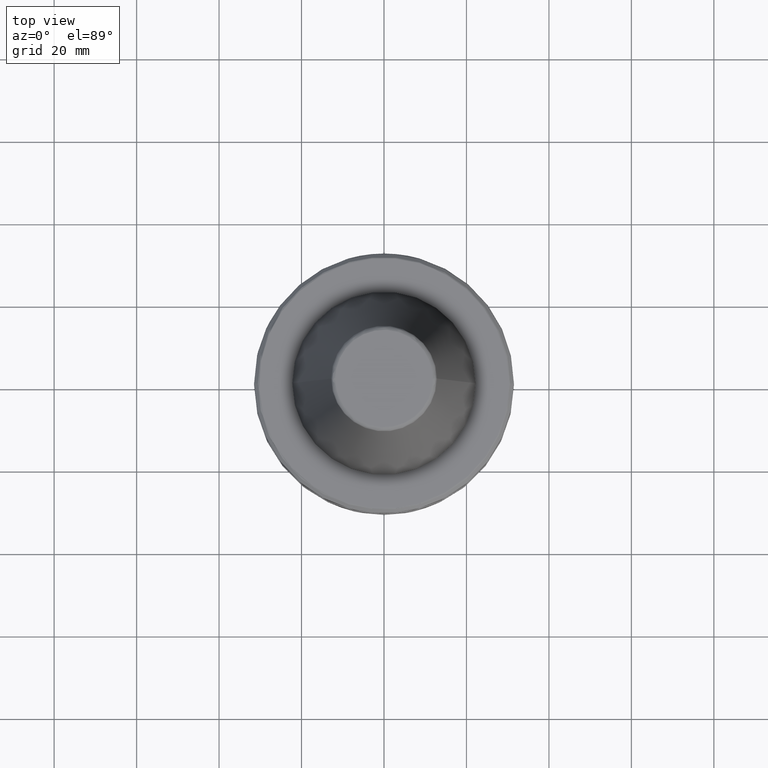
[diagram: clean part render]
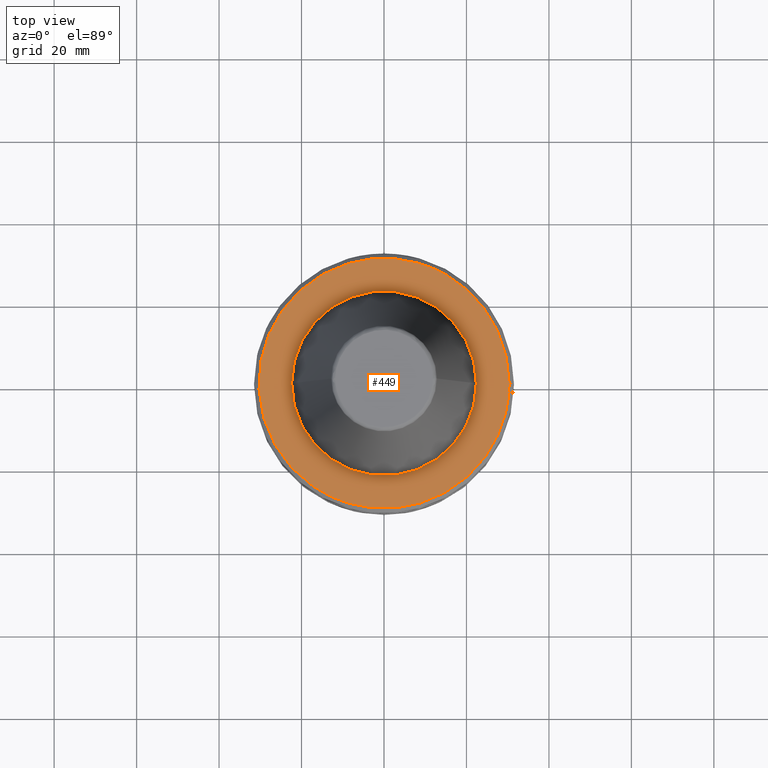
[diagram: same view with one face highlighted and labeled with its STEP entity id]
A machine part, top view. The second image highlights one B-rep face of the part: STEP entity #449.
In plain terms, the highlighted planar face has unit normal (0, 0, 1).
Its self-contained STEP definition (entity closure, byte-faithful):
#18 = CARTESIAN_POINT ( 'NONE',  ( -22.85963190511669300, 19.94021671517214900, -21.44423752521513300 ) ) ;
#20 = ORIENTED_EDGE ( 'NONE', *, *, #1716, .T. ) ;
#44 = DIRECTION ( 'NONE',  ( 6.122758756135230300E-017, -0.0000000000000000000, -1.000000000000000000 ) ) ;
#46 = CARTESIAN_POINT ( 'NONE',  ( -12.26931175439542300, 27.74229595683208800, -21.44423752521513300 ) ) ;
#47 = CARTESIAN_POINT ( 'NONE',  ( 24.85989369707722200, -17.40275913446201300, -21.44423752521513300 ) ) ;
#49 = CARTESIAN_POINT ( 'NONE',  ( -23.09558507378552900, -19.66645775180134900, -21.44423752521512900 ) ) ;
#57 = CARTESIAN_POINT ( 'NONE',  ( -15.82653136432653300, 25.87846080700313000, -21.44423752521513600 ) ) ;
#58 = CARTESIAN_POINT ( 'NONE',  ( 20.76056907758360700, -22.11742783630511200, -21.44423752521512900 ) ) ;
#61 = CARTESIAN_POINT ( 'NONE',  ( -29.30556523497550700, 7.846641085823474500, -21.44423752521512600 ) ) ;
#70 = CARTESIAN_POINT ( 'NONE',  ( 17.19472438798076700, -24.99029216120858600, -21.44423752521513300 ) ) ;
#105 = CARTESIAN_POINT ( 'NONE',  ( 28.98842710708739300, 8.936419584292126600, -21.44423752521513300 ) ) ;
#117 = CIRCLE ( 'NONE', #3389, 30.33431456900200700 ) ;
#142 = CARTESIAN_POINT ( 'NONE',  ( 26.30708420054977400, -15.11355072630101200, -21.44423752521513300 ) ) ;
#191 = DIRECTION ( 'NONE',  ( -1.000000000000000000, 0.0000000000000000000, -1.143736722338525600E-016 ) ) ;
#205 = CARTESIAN_POINT ( 'NONE',  ( -23.45444527750282400, -19.23904396912761800, -21.44423752521512900 ) ) ;
#216 = AXIS2_PLACEMENT_3D ( 'NONE', #3459, #3246, #2280 ) ;
#219 = CARTESIAN_POINT ( 'NONE',  ( -29.72993185422424700, -6.042936981963381800, -21.44423752521512900 ) ) ;
#238 = CARTESIAN_POINT ( 'NONE',  ( -29.24160871003692800, -8.069217508157454000, -21.44423752521513300 ) ) ;
#240 = CARTESIAN_POINT ( 'NONE',  ( -19.54990844443964100, 23.19423031967951600, -21.44423752521513300 ) ) ;
#248 = CARTESIAN_POINT ( 'NONE',  ( 29.95231550302439100, -4.799164966205795600, -21.44423752521512600 ) ) ;
#250 = EDGE_CURVE ( 'NONE', #763, #864, #1243, .T. ) ;
#253 = CARTESIAN_POINT ( 'NONE',  ( -28.22870576551100500, 11.10510492090675800, -21.44423752521513300 ) ) ;
#259 = CARTESIAN_POINT ( 'NONE',  ( -17.05157918383674700, -25.09305249309833400, -21.44423752521513600 ) ) ;
#261 = DIRECTION ( 'NONE',  ( -1.000000000000000000, 0.0000000000000000000, -1.143736722338525600E-016 ) ) ;
#267 = B_SPLINE_CURVE_WITH_KNOTS ( 'NONE', 3,
 ( #1010, #1705, #938, #655, #1626, #1297, #321, #2759, #46, #3475, #2265, #1563, #3247, #1641, #1200, #57, #3093, #2677, #1054, #478, #2669, #749, #844, #1123, #1923, #3025, #2773, #240, #2965, #2412, #1048, #2486, #2211, #18, #293, #772, #2690, #1582, #3277, #281, #3213, #1646, #3222, #1591, #1870, #3502, #782, #1328, #1072, #1688, #1675, #2946, #1471, #3319, #2241, #253, #1954, #607, #918, #2433, #1134, #3232, #1316, #61, #1144, #1877, #3033, #3207, #1418, #3042, #3021, #3311, #2250, #1846, #2510, #328, #2797, #1796, #3146, #438, #2895, #2616, #2938, #312, #219, #2446, #596, #501, #238, #3316, #1943, #1408, #2498, #859, #2735, #465, #2788, #602, #857, #287, #2507, #2221, #882, #303, #2954, #1323, #1306, #2138, #1664, #3303, #444, #734, #1556, #205, #1399, #49, #851, #1019, #3008, #1376, #2096, #3466, #2727, #627, #1980, #3187, #2927, #3329, #2233, #2029, #259, #3252, #807, #2385, #1700, #2150, #514, #347, #1967, #1655, #1086, #2439, #551, #2763, #871, #616, #338, #2467, #2522 ),
 .UNSPECIFIED., .F., .F.,
 ( 4, 1, 1, 1, 1, 1, 2, 2, 1, 1, 1, 1, 1, 2, 2, 1, 1, 1, 1, 1, 2, 2, 1, 1, 1, 1, 1, 2, 2, 1, 1, 1, 1, 2, 2, 1, 1, 2, 2, 1, 1, 2, 2, 1, 1, 2, 2, 1, 2, 2, 2, 2, 2, 1, 2, 2, 1, 2, 2, 1, 1, 2, 2, 1, 1, 2, 2, 1, 1, 1, 2, 2, 1, 1, 1, 2, 2, 1, 1, 1, 1, 1, 2, 2, 1, 1, 1, 1, 1, 2, 2, 1, 1, 1, 1, 1, 2, 2, 1, 1, 1, 1, 1, 2, 2, 4 ),
 ( 0.0000000000000000000, 0.03124999999999398400, 0.04687499999999097900, 0.05468749999998948100, 0.05859374999998869700, 0.06054687499998826600, 0.06152343749998809300, 0.06249999999998791900, 0.09374999999998408200, 0.1093749999999822200, 0.1171874999999812400, 0.1210937499999808200, 0.1230468749999806100, 0.1240234374999805600, 0.1249999999999804900, 0.1562499999999801300, 0.1718749999999800200, 0.1796874999999799600, 0.1835937499999798800, 0.1855468749999797700, 0.1865234374999796600, 0.1874999999999795400, 0.2187499999999784300, 0.2343749999999779100, 0.2421874999999776600, 0.2460937499999775700, 0.2480468749999776000, 0.2490234374999776000, 0.2499999999999775700, 0.2812499999999810700, 0.2968749999999827400, 0.3046874999999835700, 0.3085937499999840100, 0.3105468749999842900, 0.3124999999999845700, 0.3281249999999865700, 0.3359374999999875100, 0.3398437499999879500, 0.3437499999999884500, 0.3593749999999901200, 0.3671874999999909500, 0.3710937499999914000, 0.3749999999999918400, 0.3906249999999937300, 0.3984374999999946700, 0.4023437499999951700, 0.4062499999999956100, 0.4218749999999975000, 0.4296874999999984500, 0.4374999999999993900, 0.4531250000000012800, 0.4687500000000031100, 0.5000000000000068800, 0.5156250000000087700, 0.5234375000000096600, 0.5312500000000106600, 0.5468750000000125500, 0.5546875000000134300, 0.5625000000000144300, 0.5781250000000164300, 0.5859375000000173200, 0.5898437500000177600, 0.5937500000000182100, 0.6093750000000203200, 0.6171875000000214300, 0.6210937500000218700, 0.6250000000000223200, 0.6406250000000239800, 0.6484375000000248700, 0.6523437500000252000, 0.6542968750000253100, 0.6562500000000255400, 0.6718750000000269800, 0.6796875000000276400, 0.6835937500000280900, 0.6855468750000282000, 0.6875000000000284200, 0.7187500000000303100, 0.7343750000000312000, 0.7421875000000316400, 0.7460937500000318600, 0.7480468750000319700, 0.7490234375000319700, 0.7500000000000319700, 0.7812500000000299800, 0.7968750000000289800, 0.8046875000000285300, 0.8085937500000282000, 0.8105468750000280900, 0.8115234375000278700, 0.8125000000000276400, 0.8437500000000242000, 0.8593750000000224300, 0.8671875000000214300, 0.8710937500000210900, 0.8730468750000207600, 0.8740234375000205400, 0.8750000000000204300, 0.9062500000000153200, 0.9218750000000127700, 0.9296875000000115500, 0.9335937500000108800, 0.9355468750000106600, 0.9365234375000104400, 0.9375000000000102100, 1.000000000000000000 ),
 .UNSPECIFIED. ) ;
#269 = FACE_BOUND ( 'NONE', #1056, .T. ) ;
#271 = CARTESIAN_POINT ( 'NONE',  ( 28.63096951996833200, 10.05576094680307800, -21.44423752521513300 ) ) ;
#272 = VERTEX_POINT ( 'NONE', #3368 ) ;
#281 = CARTESIAN_POINT ( 'NONE',  ( -25.16654743510042600, 16.94516325671633100, -21.44423752521512900 ) ) ;
#287 = CARTESIAN_POINT ( 'NONE',  ( -27.40149213974587600, -13.01349206527160600, -21.44423752521513300 ) ) ;
#293 = CARTESIAN_POINT ( 'NONE',  ( -22.90887552212405600, 19.88352701772038200, -21.44423752521513300 ) ) ;
#303 = CARTESIAN_POINT ( 'NONE',  ( -27.03553885906390200, -13.76390742996183600, -21.44423752521514000 ) ) ;
#312 = CARTESIAN_POINT ( 'NONE',  ( -29.85796792915278200, -5.359648912770656400, -21.44423752521512600 ) ) ;
#321 = CARTESIAN_POINT ( 'NONE',  ( -12.17877127723184400, 27.78220357693111700, -21.44423752521513600 ) ) ;
#322 = CARTESIAN_POINT ( 'NONE',  ( 14.86329725062593400, -26.46491810425159800, -21.44423752521513300 ) ) ;
#328 = CARTESIAN_POINT ( 'NONE',  ( -30.31800518701056600, -1.173009827675317100, -21.44423752521513300 ) ) ;
#338 = CARTESIAN_POINT ( 'NONE',  ( -11.14803108254964000, -28.23998999071186200, -21.44423752521513300 ) ) ;
#347 = CARTESIAN_POINT ( 'NONE',  ( -15.36878485440662900, -26.16193571590465800, -21.44423752521514000 ) ) ;
#349 = CARTESIAN_POINT ( 'NONE',  ( 8.750000001478788600, 29.04493313135358400, -21.44423752520788200 ) ) ;
#376 = CARTESIAN_POINT ( 'NONE',  ( 19.54166597335442600, 23.22700986481959300, -21.44423752521512900 ) ) ;
#386 = CARTESIAN_POINT ( 'NONE',  ( 21.13382203617698400, 21.76103739964289100, -21.44423752521512900 ) ) ;
#396 = CARTESIAN_POINT ( 'NONE',  ( -8.749999995869760700, 29.04493313379887500, -21.44423752520788200 ) ) ;
#412 = CARTESIAN_POINT ( 'NONE',  ( 20.91054753844557700, -21.97567508848609200, -21.44423752521513300 ) ) ;
#438 = CARTESIAN_POINT ( 'NONE',  ( -30.16040121440200400, -3.277170787968350000, -21.44423752521512900 ) ) ;
#444 = CARTESIAN_POINT ( 'NONE',  ( -25.52221399129786400, -16.41682807450866800, -21.44423752521513600 ) ) ;
#449 = ADVANCED_FACE ( 'NONE', ( #986, #269 ), #889, .T. ) ;
#465 = CARTESIAN_POINT ( 'NONE',  ( -28.35057164199199800, -10.79019309049798500, -21.44423752521513600 ) ) ;
#478 = CARTESIAN_POINT ( 'NONE',  ( -16.58941387358659700, 25.40707027270746500, -21.44423752521513300 ) ) ;
#487 = CARTESIAN_POINT ( 'NONE',  ( 18.90411900672180700, -23.74878839316824000, -21.44423752521512600 ) ) ;
#501 = CARTESIAN_POINT ( 'NONE',  ( -29.30241173548877500, -7.845556328232476100, -21.44423752521513600 ) ) ;
#502 = CARTESIAN_POINT ( 'NONE',  ( 26.65983322002964300, -14.47418957295730900, -21.44423752521513300 ) ) ;
#514 = CARTESIAN_POINT ( 'NONE',  ( -15.97329696644321800, -25.78807603657751100, -21.44423752521513300 ) ) ;
#525 = CARTESIAN_POINT ( 'NONE',  ( 27.04742688784089600, 13.73383212788996000, -21.44423752521513300 ) ) ;
#540 = CARTESIAN_POINT ( 'NONE',  ( 30.01202196808252200, 4.410385860621262900, -21.44423752521512900 ) ) ;
#551 = CARTESIAN_POINT ( 'NONE',  ( -12.44322710590108200, -27.66477778677129600, -21.44423752521513300 ) ) ;
#556 = CARTESIAN_POINT ( 'NONE',  ( 27.63035417192132900, 12.53142947791739000, -21.44423752521513300 ) ) ;
#557 = EDGE_CURVE ( 'NONE', #1851, #272, #2802, .T. ) ;
#596 = CARTESIAN_POINT ( 'NONE',  ( -29.39167438075841300, -7.509625110865800800, -21.44423752521513300 ) ) ;
#602 = CARTESIAN_POINT ( 'NONE',  ( -27.89226686244611400, -11.93932451988366600, -21.44423752521513300 ) ) ;
#603 = CARTESIAN_POINT ( 'NONE',  ( 13.79814797504549700, -27.02646656267283700, -21.44423752521513600 ) ) ;
#607 = CARTESIAN_POINT ( 'NONE',  ( -28.47452982409519600, 10.46812696465313800, -21.44423752521512600 ) ) ;
#616 = CARTESIAN_POINT ( 'NONE',  ( -12.32358534066792200, -27.71822966472389300, -21.44423752521513300 ) ) ;
#627 = CARTESIAN_POINT ( 'NONE',  ( -19.83564152659195700, -22.95072491973525400, -21.44423752521513300 ) ) ;
#641 = EDGE_CURVE ( 'NONE', #3501, #272, #1423, .T. ) ;
#648 = CARTESIAN_POINT ( 'NONE',  ( 17.82733198809326300, 24.54451400706288700, -21.44423752521514000 ) ) ;
#655 = CARTESIAN_POINT ( 'NONE',  ( -11.28643410339207700, 28.15961445782267300, -21.44423752521513600 ) ) ;
#662 = CARTESIAN_POINT ( 'NONE',  ( 29.99785526008798400, 4.505728233860958600, -21.44423752521513300 ) ) ;
#663 = CARTESIAN_POINT ( 'NONE',  ( 28.41477420483278800, -10.63361780963425600, -21.44423752521513600 ) ) ;
#688 = CARTESIAN_POINT ( 'NONE',  ( 29.09063575868577400, 8.601010503176203400, -21.44423752521513300 ) ) ;
#700 = CARTESIAN_POINT ( 'NONE',  ( 22.26372282852959100, -20.67119464497361700, -21.44423752521512900 ) ) ;
#710 = CARTESIAN_POINT ( 'NONE',  ( 29.86171522720278700, 5.393757614625077900, -21.44423752521513600 ) ) ;
#734 = CARTESIAN_POINT ( 'NONE',  ( -24.81865136491735800, -17.47798243998386200, -21.44423752521513300 ) ) ;
#749 = CARTESIAN_POINT ( 'NONE',  ( -18.55705501470736300, 24.00111131073269300, -21.44423752521512900 ) ) ;
#763 = VERTEX_POINT ( 'NONE', #2559 ) ;
#772 = CARTESIAN_POINT ( 'NONE',  ( -22.94166126692964600, 19.84568985575193900, -21.44423752521512900 ) ) ;
#782 = CARTESIAN_POINT ( 'NONE',  ( -26.51982622993560300, 14.73806452994922700, -21.44423752521513300 ) ) ;
#794 = CARTESIAN_POINT ( 'NONE',  ( 0.0000000000000000000, 0.0000000000000000000, -21.44423752510434500 ) ) ;
#795 = CARTESIAN_POINT ( 'NONE',  ( 13.16285478294789300, 27.32969761418344500, -21.44423752521514400 ) ) ;
#807 = CARTESIAN_POINT ( 'NONE',  ( -16.23178498455597900, -25.62645439202899700, -21.44423752521513300 ) ) ;
#810 = CARTESIAN_POINT ( 'NONE',  ( 27.18528209523584500, 13.45890902761307100, -21.44423752521512900 ) ) ;
#831 = DIRECTION ( 'NONE',  ( 0.0000000000000000000, -0.0000000000000000000, -1.000000000000000000 ) ) ;
#844 = CARTESIAN_POINT ( 'NONE',  ( -19.06655336706329300, 23.59447132602341000, -21.44423752521513300 ) ) ;
#851 = CARTESIAN_POINT ( 'NONE',  ( -23.04372570766855700, -19.72708847695814100, -21.44423752521513600 ) ) ;
#857 = CARTESIAN_POINT ( 'NONE',  ( -27.56911341682788200, -12.65715468422670200, -21.44423752521513300 ) ) ;
#858 = CARTESIAN_POINT ( 'NONE',  ( 10.58809472696476900, -28.44498156557607500, -21.44423752521513300 ) ) ;
#859 = CARTESIAN_POINT ( 'NONE',  ( -28.47156557247467000, -10.46679024261103000, -21.44423752521513300 ) ) ;
#864 = VERTEX_POINT ( 'NONE', #3057 ) ;
#871 = CARTESIAN_POINT ( 'NONE',  ( -12.34488282749366300, -27.70875195747039800, -21.44423752521513300 ) ) ;
#877 = CARTESIAN_POINT ( 'NONE',  ( 30.33431456900201400, 0.0000000000000000000, -21.44423752520426200 ) ) ;
#882 = CARTESIAN_POINT ( 'NONE',  ( -27.25412894740920000, -13.31863642251586200, -21.44423752521513300 ) ) ;
#889 = PLANE ( 'NONE',  #216 ) ;
#918 = CARTESIAN_POINT ( 'NONE',  ( -28.70639203152474300, 9.822481284217595000, -21.44423752521513300 ) ) ;
#938 = CARTESIAN_POINT ( 'NONE',  ( -10.25539830330051700, 28.56047632671817000, -21.44423752521514000 ) ) ;
#957 = CARTESIAN_POINT ( 'NONE',  ( 30.29044347923333500, 1.924758843768473300, -21.44423752521514000 ) ) ;
#960 = CARTESIAN_POINT ( 'NONE',  ( 0.0000000000000000000, 0.0000000000000000000, -21.44423752510434500 ) ) ;
#986 = FACE_OUTER_BOUND ( 'NONE', #2016, .T. ) ;
#1010 = CARTESIAN_POINT ( 'NONE',  ( -8.749999995869760700, 29.04493313379887500, -21.44423752520788200 ) ) ;
#1019 = CARTESIAN_POINT ( 'NONE',  ( -23.00909626142592800, -19.76746816166707200, -21.44423752521514000 ) ) ;
#1048 = CARTESIAN_POINT ( 'NONE',  ( -22.03939454325586700, 20.84996729250037000, -21.44423752521512600 ) ) ;
#1054 = CARTESIAN_POINT ( 'NONE',  ( -15.93515230959384800, 25.81166558167742400, -21.44423752521512900 ) ) ;
#1056 = EDGE_LOOP ( 'NONE', ( #3354, #2327 ) ) ;
#1069 = CARTESIAN_POINT ( 'NONE',  ( 13.38901561962753700, 27.21989881168877900, -21.44423752521513300 ) ) ;
#1072 = CARTESIAN_POINT ( 'NONE',  ( -27.03275052789015100, 13.76274605929859100, -21.44423752521513300 ) ) ;
#1086 = CARTESIAN_POINT ( 'NONE',  ( -12.85459972846838500, -27.47694574358417400, -21.44423752521513300 ) ) ;
#1097 = CARTESIAN_POINT ( 'NONE',  ( 28.85121774064391800, -9.369123570044861200, -21.44423752521514000 ) ) ;
#1118 = AXIS2_PLACEMENT_3D ( 'NONE', #3296, #44, #261 ) ;
#1120 = CARTESIAN_POINT ( 'NONE',  ( 27.37547041561037300, -13.09329530644553300, -21.44423752521512600 ) ) ;
#1123 = CARTESIAN_POINT ( 'NONE',  ( -19.31866988910829300, 23.38749669932567300, -21.44423752521513300 ) ) ;
#1127 = CARTESIAN_POINT ( 'NONE',  ( 14.32913341033815000, 26.74200232874733300, -21.44423752521513300 ) ) ;
#1130 = CARTESIAN_POINT ( 'NONE',  ( 17.07129888495623100, -25.07476727268116100, -21.44423752521513600 ) ) ;
#1134 = CARTESIAN_POINT ( 'NONE',  ( -29.05060347296399200, 8.731905628200598500, -21.44423752521512900 ) ) ;
#1144 = CARTESIAN_POINT ( 'NONE',  ( -29.48014449817852900, 7.174164014975952200, -21.44423752521513300 ) ) ;
#1172 = CARTESIAN_POINT ( 'NONE',  ( 16.57516464988139800, 25.41815741955384000, -21.44423752521512900 ) ) ;
#1181 = CARTESIAN_POINT ( 'NONE',  ( 13.11580958611024700, 27.35230287926853200, -21.44423752521513300 ) ) ;
#1182 = AXIS2_PLACEMENT_3D ( 'NONE', #960, #3417, #3280 ) ;
#1200 = CARTESIAN_POINT ( 'NONE',  ( -15.69778709484234400, 25.95694837428455400, -21.44423752521513600 ) ) ;
#1211 = CARTESIAN_POINT ( 'NONE',  ( 30.33431457495837000, 0.7712161271116305700, -21.44423752521512900 ) ) ;
#1230 = CARTESIAN_POINT ( 'NONE',  ( 29.96801143810511200, -4.700148099795349300, -21.44423752521512900 ) ) ;
#1243 = CIRCLE ( 'NONE', #1182, 22.40000002040103800 ) ;
#1270 = DIRECTION ( 'NONE',  ( 1.000000000000000000, 0.0000000000000000000, 0.0000000000000000000 ) ) ;
#1297 = CARTESIAN_POINT ( 'NONE',  ( -12.05185563246847000, 27.83764265966463100, -21.44423752521514000 ) ) ;
#1306 = CARTESIAN_POINT ( 'NONE',  ( -26.16013753808110200, -15.35705237858486800, -21.44423752521512900 ) ) ;
#1316 = CARTESIAN_POINT ( 'NONE',  ( -29.14718843085234200, 8.403888779298167600, -21.44423752521513300 ) ) ;
#1323 = CARTESIAN_POINT ( 'NONE',  ( -26.35425704788690000, -15.02361902330649600, -21.44423752521513300 ) ) ;
#1328 = CARTESIAN_POINT ( 'NONE',  ( -26.88217831965426900, 14.05718565636906300, -21.44423752521513300 ) ) ;
#1337 = VERTEX_POINT ( 'NONE', #2484 ) ;
#1369 = CARTESIAN_POINT ( 'NONE',  ( 25.35861405880739400, 16.73046950028232900, -21.44423752521513600 ) ) ;
#1372 = CARTESIAN_POINT ( 'NONE',  ( 26.95283833222943300, -13.91853609181248400, -21.44423752521513600 ) ) ;
#1373 = EDGE_CURVE ( 'NONE', #3176, #1337, #117, .T. ) ;
#1376 = CARTESIAN_POINT ( 'NONE',  ( -22.45144898412380700, -20.41434030231242900, -21.44423752521513300 ) ) ;
#1394 = CARTESIAN_POINT ( 'NONE',  ( 27.89260539019199200, -11.97365973299851700, -21.44423752521513300 ) ) ;
#1399 = CARTESIAN_POINT ( 'NONE',  ( -23.21599663866301100, -19.52455767311509400, -21.44423752521513300 ) ) ;
#1401 = CARTESIAN_POINT ( 'NONE',  ( 17.40672245480474700, 24.84309496395731600, -21.44423752521512900 ) ) ;
#1405 = CARTESIAN_POINT ( 'NONE',  ( 12.89714598837440300, -27.45608517624842200, -21.44423752521512900 ) ) ;
#1408 = CARTESIAN_POINT ( 'NONE',  ( -28.85137362389317400, -9.388095370954451000, -21.44423752521513300 ) ) ;
#1418 = CARTESIAN_POINT ( 'NONE',  ( -29.90139651576428300, 5.127975516588963800, -21.44423752521512900 ) ) ;
#1423 = B_SPLINE_CURVE_WITH_KNOTS ( 'NONE', 3,
 ( #877, #1211, #957, #1683, #2370, #2177, #540, #662, #2004, #710, #2297, #2538, #688, #105, #3361, #1733, #1907, #271, #2189, #556, #2460, #810, #2167, #525, #2435, #1369, #3269, #1637, #1561, #3138, #1780, #2983, #386, #3469, #376, #1466, #648, #3304, #1401, #1442, #3061, #1172, #3028, #1127, #2778, #1069, #2719, #795, #1181, #1451, #2057, #349 ),
 .UNSPECIFIED., .F., .F.,
 ( 4, 1, 1, 1, 1, 2, 2, 1, 1, 1, 1, 2, 2, 1, 1, 1, 2, 2, 2, 1, 1, 1, 2, 2, 1, 1, 1, 1, 2, 2, 1, 1, 1, 1, 2, 2, 4 ),
 ( 0.0000000000000000000, 0.06249999999999542000, 0.09374999999999313000, 0.1093749999999919800, 0.1171874999999914200, 0.1210937499999911900, 0.1249999999999909500, 0.1874999999999872300, 0.2187499999999853500, 0.2343749999999844800, 0.2421874999999840700, 0.2460937499999839300, 0.2499999999999838500, 0.3124999999999825700, 0.3437499999999820100, 0.3593749999999817900, 0.3671874999999815700, 0.3749999999999814000, 0.4999999999999802400, 0.5624999999999796800, 0.5937499999999793500, 0.6093749999999791300, 0.6171874999999790200, 0.6249999999999787900, 0.6874999999999775700, 0.7187499999999771300, 0.7343749999999769100, 0.7421874999999770200, 0.7460937499999772400, 0.7499999999999773500, 0.8124999999999833500, 0.8437499999999862300, 0.8593749999999876800, 0.8671874999999884500, 0.8710937499999889000, 0.8749999999999893400, 1.000000000000000000 ),
 .UNSPECIFIED. ) ;
#1442 = CARTESIAN_POINT ( 'NONE',  ( 17.32208312798371700, 24.90218239604509900, -21.44423752521513600 ) ) ;
#1451 = CARTESIAN_POINT ( 'NONE',  ( 11.67427520324747900, 28.04074170516553700, -21.44423752521512900 ) ) ;
#1466 = CARTESIAN_POINT ( 'NONE',  ( 18.40812359473299900, 24.11670419200401800, -21.44423752521513300 ) ) ;
#1471 = CARTESIAN_POINT ( 'NONE',  ( -27.71196662875021800, 12.35204075583509600, -21.44423752521512600 ) ) ;
#1489 = CARTESIAN_POINT ( 'NONE',  ( 29.92841003638866600, -4.947604003023527300, -21.44423752521513300 ) ) ;
#1537 = DIRECTION ( 'NONE',  ( 6.122758756135230300E-017, -0.0000000000000000000, -1.000000000000000000 ) ) ;
#1556 = CARTESIAN_POINT ( 'NONE',  ( -23.92184459152181800, -18.66116237469282900, -21.44423752521513600 ) ) ;
#1561 = CARTESIAN_POINT ( 'NONE',  ( 22.09088076522871400, 20.79604614924344100, -21.44423752521514000 ) ) ;
#1563 = CARTESIAN_POINT ( 'NONE',  ( -13.86415961926879700, 26.99612151121091200, -21.44423752521512900 ) ) ;
#1582 = CARTESIAN_POINT ( 'NONE',  ( -23.53005888117358100, 19.16329848511978200, -21.44423752521513300 ) ) ;
#1591 = CARTESIAN_POINT ( 'NONE',  ( -25.90715952071815300, 15.77949653812124900, -21.44423752521513300 ) ) ;
#1626 = CARTESIAN_POINT ( 'NONE',  ( -11.79746324858512100, 27.94699758252555800, -21.44423752521513600 ) ) ;
#1637 = CARTESIAN_POINT ( 'NONE',  ( 23.07676778877071700, 19.71966275226225600, -21.44423752521513300 ) ) ;
#1641 = CARTESIAN_POINT ( 'NONE',  ( -15.43940690722267700, 26.11221914298980100, -21.44423752521513300 ) ) ;
#1642 = CARTESIAN_POINT ( 'NONE',  ( 28.86751918071630400, -9.318767940978128600, -21.44423752521513600 ) ) ;
#1646 = CARTESIAN_POINT ( 'NONE',  ( -25.76810133034875600, 16.00611813852728800, -21.44423752521513300 ) ) ;
#1655 = CARTESIAN_POINT ( 'NONE',  ( -13.39887550370883900, -27.21858097113412000, -21.44423752521513300 ) ) ;
#1663 = CARTESIAN_POINT ( 'NONE',  ( 25.56323180087678500, -16.36831578779603900, -21.44423752521512900 ) ) ;
#1664 = CARTESIAN_POINT ( 'NONE',  ( -26.01922917974168900, -15.59401518636706500, -21.44423752521513300 ) ) ;
#1671 = CARTESIAN_POINT ( 'NONE',  ( 11.83941287480811200, -27.93322777065648000, -21.44423752521513300 ) ) ;
#1675 = CARTESIAN_POINT ( 'NONE',  ( -27.18025756465646500, 13.46910465775404800, -21.44423752521512900 ) ) ;
#1683 = CARTESIAN_POINT ( 'NONE',  ( 30.16248611670198100, 3.264816100349556400, -21.44423752521512900 ) ) ;
#1686 = CARTESIAN_POINT ( 'NONE',  ( 17.15433945216385700, -25.01802854571976900, -21.44423752521512600 ) ) ;
#1688 = CARTESIAN_POINT ( 'NONE',  ( -27.13208276793615800, 13.56586758002134900, -21.44423752521512900 ) ) ;
#1700 = CARTESIAN_POINT ( 'NONE',  ( -16.03423993749606800, -25.75022878978812100, -21.44423752521513600 ) ) ;
#1705 = CARTESIAN_POINT ( 'NONE',  ( -9.356263315155539200, 28.86229184571645900, -21.44423752521513600 ) ) ;
#1716 = EDGE_CURVE ( 'NONE', #1851, #1337, #267, .T. ) ;
#1733 = CARTESIAN_POINT ( 'NONE',  ( 28.91336940120705300, 9.175520046391985900, -21.44423752521512200 ) ) ;
#1746 = CARTESIAN_POINT ( 'NONE',  ( 30.33431457497162100, -1.542779007675801900, -21.44423752521513600 ) ) ;
#1768 = CARTESIAN_POINT ( 'NONE',  ( 23.36555037927637100, -19.41688641021136200, -21.44423752521512900 ) ) ;
#1780 = CARTESIAN_POINT ( 'NONE',  ( 21.35866752157886600, 21.54041520531617600, -21.44423752521513300 ) ) ;
#1796 = CARTESIAN_POINT ( 'NONE',  ( -30.24453846332192700, -2.343846697131948300, -21.44423752521513300 ) ) ;
#1846 = CARTESIAN_POINT ( 'NONE',  ( -30.33429755141496600, 0.9389045383045359100, -21.44423752521512200 ) ) ;
#1851 = VERTEX_POINT ( 'NONE', #396 ) ;
#1870 = CARTESIAN_POINT ( 'NONE',  ( -25.93380419485157900, 15.73567355049435800, -21.44423752521512900 ) ) ;
#1877 = CARTESIAN_POINT ( 'NONE',  ( -29.63151440876439200, 6.496017186111593800, -21.44423752521512900 ) ) ;
#1907 = CARTESIAN_POINT ( 'NONE',  ( 28.89858134316644800, 9.221997355100700800, -21.44423752521513300 ) ) ;
#1923 = CARTESIAN_POINT ( 'NONE',  ( -19.44406998659755500, 23.28309572739105000, -21.44423752521513300 ) ) ;
#1943 = CARTESIAN_POINT ( 'NONE',  ( -29.05377656789162400, -8.732617317255108700, -21.44423752521513600 ) ) ;
#1954 = CARTESIAN_POINT ( 'NONE',  ( -28.26907202197830000, 11.00196227169500300, -21.44423752521513300 ) ) ;
#1963 = CARTESIAN_POINT ( 'NONE',  ( 16.65416802668826100, -25.35511054134805800, -21.44423752521513600 ) ) ;
#1967 = CARTESIAN_POINT ( 'NONE',  ( -14.47295486613505500, -26.67469011811782000, -21.44423752521513300 ) ) ;
#1977 = CARTESIAN_POINT ( 'NONE',  ( 29.87009966613603900, -5.293357916012627800, -21.44423752521513600 ) ) ;
#1980 = CARTESIAN_POINT ( 'NONE',  ( -19.70264147409598400, -23.06471178871487700, -21.44423752521513600 ) ) ;
#2004 = CARTESIAN_POINT ( 'NONE',  ( 29.99094772053029000, 4.551500430332438900, -21.44423752521513300 ) ) ;
#2016 = EDGE_LOOP ( 'NONE', ( #20, #3103, #3370, #3085, #2569 ) ) ;
#2029 = CARTESIAN_POINT ( 'NONE',  ( -18.11984527912974100, -24.34790061053422900, -21.44423752521513300 ) ) ;
#2057 = CARTESIAN_POINT ( 'NONE',  ( 10.23356629335728300, 28.59799786287141600, -21.44423752521512900 ) ) ;
#2096 = CARTESIAN_POINT ( 'NONE',  ( -21.63358037532213300, -21.29054291801603700, -21.44423752521513600 ) ) ;
#2138 = CARTESIAN_POINT ( 'NONE',  ( -26.07575145712129200, -15.49931504263486200, -21.44423752521513300 ) ) ;
#2139 = CARTESIAN_POINT ( 'NONE',  ( 26.80690197544460300, -14.19761080239655200, -21.44423752521513300 ) ) ;
#2150 = CARTESIAN_POINT ( 'NONE',  ( -15.99463289518236100, -25.77484943083607000, -21.44423752521512600 ) ) ;
#2160 = CARTESIAN_POINT ( 'NONE',  ( 29.44937089774747800, -7.350973885550533100, -21.44423752521513300 ) ) ;
#2167 = CARTESIAN_POINT ( 'NONE',  ( 27.09326598936603500, 13.64317372372470200, -21.44423752521513300 ) ) ;
#2177 = CARTESIAN_POINT ( 'NONE',  ( 30.03292928713898400, 4.267346664246010900, -21.44423752521512900 ) ) ;
#2189 = CARTESIAN_POINT ( 'NONE',  ( 28.20668680420683900, 11.21377500257944100, -21.44423752521513300 ) ) ;
#2211 = CARTESIAN_POINT ( 'NONE',  ( -22.74427513350693900, 20.07203035738674400, -21.44423752521513600 ) ) ;
#2221 = CARTESIAN_POINT ( 'NONE',  ( -27.27931605081495200, -13.26697541080003400, -21.44423752521514000 ) ) ;
#2233 = CARTESIAN_POINT ( 'NONE',  ( -18.99907164101645000, -23.65931423675946400, -21.44423752521513600 ) ) ;
#2239 = CARTESIAN_POINT ( 'NONE',  ( 16.94655145134835500, -25.15955113414192500, -21.44423752521513300 ) ) ;
#2241 = CARTESIAN_POINT ( 'NONE',  ( -28.14553413828869900, 11.31424795221306700, -21.44423752521513300 ) ) ;
#2246 = CARTESIAN_POINT ( 'NONE',  ( 20.98426913038819200, -21.90529410334922700, -21.44423752521512900 ) ) ;
#2250 = CARTESIAN_POINT ( 'NONE',  ( -30.29076611538207700, 1.876886031417243100, -21.44423752521512600 ) ) ;
#2262 = EDGE_CURVE ( 'NONE', #3176, #3501, #2923, .T. ) ;
#2265 = CARTESIAN_POINT ( 'NONE',  ( -12.93548555502557000, 27.44666887132523700, -21.44423752521513600 ) ) ;
#2280 = DIRECTION ( 'NONE',  ( 1.000000000000000000, 0.0000000000000000000, 0.0000000000000000000 ) ) ;
#2283 = CIRCLE ( 'NONE', #2586, 22.40000002040103800 ) ;
#2297 = CARTESIAN_POINT ( 'NONE',  ( 29.63292899849324500, 6.572041760364520300, -21.44423752521513300 ) ) ;
#2300 = CARTESIAN_POINT ( 'NONE',  ( 28.65556978156043800, -9.955146742699772800, -21.44423752521513600 ) ) ;
#2318 = CARTESIAN_POINT ( 'NONE',  ( 20.53460649961489500, -22.32883463492899500, -21.44423752521512900 ) ) ;
#2327 = ORIENTED_EDGE ( 'NONE', *, *, #2755, .T. ) ;
#2370 = CARTESIAN_POINT ( 'NONE',  ( 30.07931383105659200, 3.933409083760461800, -21.44423752521513300 ) ) ;
#2385 = CARTESIAN_POINT ( 'NONE',  ( -16.09360306569160300, -25.71323287410141800, -21.44423752521513300 ) ) ;
#2395 = CARTESIAN_POINT ( 'NONE',  ( 12.45809533749644200, -27.65923488050163900, -21.44423752521514000 ) ) ;
#2412 = CARTESIAN_POINT ( 'NONE',  ( -21.06558052800771800, 21.85269675752158800, -21.44423752521513600 ) ) ;
#2430 = CARTESIAN_POINT ( 'NONE',  ( 9.491616504584740700, -28.82151570055269100, -21.44423752521512900 ) ) ;
#2433 = CARTESIAN_POINT ( 'NONE',  ( -28.95119541874877800, 9.060402194401838500, -21.44423752521513300 ) ) ;
#2435 = CARTESIAN_POINT ( 'NONE',  ( 26.23772648863186100, 15.31501136433278500, -21.44423752521512900 ) ) ;
#2439 = CARTESIAN_POINT ( 'NONE',  ( -12.58065281734131000, -27.60273296629468100, -21.44423752521512900 ) ) ;
#2446 = CARTESIAN_POINT ( 'NONE',  ( -29.58636063603085400, -6.722709471322451300, -21.44423752521513300 ) ) ;
#2460 = CARTESIAN_POINT ( 'NONE',  ( 27.32185382313764100, 13.18191623481939700, -21.44423752521513300 ) ) ;
#2467 = CARTESIAN_POINT ( 'NONE',  ( -9.962864446478954900, -28.67954878815529100, -21.44423752521513600 ) ) ;
#2484 = CARTESIAN_POINT ( 'NONE',  ( -8.749999995869762500, -29.04493313379886700, -21.44423752520788200 ) ) ;
#2486 = CARTESIAN_POINT ( 'NONE',  ( -22.51174159591706600, 20.33380836779108200, -21.44423752521513600 ) ) ;
#2498 = CARTESIAN_POINT ( 'NONE',  ( -28.58938566633432300, -10.14443890969965200, -21.44423752521513300 ) ) ;
#2507 = CARTESIAN_POINT ( 'NONE',  ( -27.32835918793796300, -13.16565572119227800, -21.44423752521513300 ) ) ;
#2508 = CARTESIAN_POINT ( 'NONE',  ( 13.02675039796568700, -27.39483329308407600, -21.44423752521513300 ) ) ;
#2510 = CARTESIAN_POINT ( 'NONE',  ( -30.33432308671673300, -0.4694522691522602900, -21.44423752521513600 ) ) ;
#2518 = CARTESIAN_POINT ( 'NONE',  ( 16.06417685906781400, -25.73715094428412800, -21.44423752521513300 ) ) ;
#2522 = CARTESIAN_POINT ( 'NONE',  ( -8.749999995869762500, -29.04493313379886700, -21.44423752520788200 ) ) ;
#2538 = CARTESIAN_POINT ( 'NONE',  ( 29.28491610905643600, 7.927833161499199500, -21.44423752521513300 ) ) ;
#2559 = CARTESIAN_POINT ( 'NONE',  ( 22.40000001036365500, 0.0000000000000000000, -21.44423752510434500 ) ) ;
#2564 = CARTESIAN_POINT ( 'NONE',  ( 8.750000001479552500, -29.04493313135611400, -21.44423752520788200 ) ) ;
#2569 = ORIENTED_EDGE ( 'NONE', *, *, #557, .F. ) ;
#2586 = AXIS2_PLACEMENT_3D ( 'NONE', #794, #831, #1270 ) ;
#2616 = CARTESIAN_POINT ( 'NONE',  ( -29.97421796202241900, -4.666058091268344500, -21.44423752521513300 ) ) ;
#2669 = CARTESIAN_POINT ( 'NONE',  ( -17.51699707693187200, 24.78515420540653800, -21.44423752521513300 ) ) ;
#2677 = CARTESIAN_POINT ( 'NONE',  ( -15.91831110411200500, 25.82205332775956200, -21.44423752521513600 ) ) ;
#2690 = CARTESIAN_POINT ( 'NONE',  ( -22.95701710977266800, 19.82792690338144900, -21.44423752521513300 ) ) ;
#2697 = CARTESIAN_POINT ( 'NONE',  ( 30.33431456900201400, 0.0000000000000000000, -21.44423752520426200 ) ) ;
#2719 = CARTESIAN_POINT ( 'NONE',  ( 13.25339446683475600, 27.28590737127410300, -21.44423752521513300 ) ) ;
#2727 = CARTESIAN_POINT ( 'NONE',  ( -20.09981129197779400, -22.72091215789015500, -21.44423752521513300 ) ) ;
#2735 = CARTESIAN_POINT ( 'NONE',  ( -28.39178783420820200, -10.68129204277873600, -21.44423752521514400 ) ) ;
#2748 = CARTESIAN_POINT ( 'NONE',  ( 29.74335513322036900, -5.982450383648449900, -21.44423752521513300 ) ) ;
#2755 = EDGE_CURVE ( 'NONE', #864, #763, #2283, .T. ) ;
#2759 = CARTESIAN_POINT ( 'NONE',  ( -12.23310357916365700, 27.75828076548035000, -21.44423752521512600 ) ) ;
#2763 = CARTESIAN_POINT ( 'NONE',  ( -12.38423346045310500, -27.69118654035872100, -21.44423752521513300 ) ) ;
#2773 = CARTESIAN_POINT ( 'NONE',  ( -19.53337508527880900, 23.20815379039109400, -21.44423752521512900 ) ) ;
#2778 = CARTESIAN_POINT ( 'NONE',  ( 13.70414636488130900, 27.06361647277384100, -21.44423752521512900 ) ) ;
#2788 = CARTESIAN_POINT ( 'NONE',  ( -28.14853134404038200, -11.31520368944121600, -21.44423752521513600 ) ) ;
#2794 = CARTESIAN_POINT ( 'NONE',  ( 12.76569241603227300, -27.51770943725045600, -21.44423752521514000 ) ) ;
#2797 = CARTESIAN_POINT ( 'NONE',  ( -30.27719128626880600, -1.875636118390364300, -21.44423752521513600 ) ) ;
#2802 = CIRCLE ( 'NONE', #1118, 30.33431456900200700 ) ;
#2805 = CARTESIAN_POINT ( 'NONE',  ( 8.750000001479552500, -29.04493313135611400, -21.44423752520788200 ) ) ;
#2844 = CARTESIAN_POINT ( 'NONE',  ( 29.12796411938516900, -8.507431572833096900, -21.44423752521512900 ) ) ;
#2876 = CARTESIAN_POINT ( 'NONE',  ( 29.97603395988366200, -4.648688230150986200, -21.44423752521512900 ) ) ;
#2895 = CARTESIAN_POINT ( 'NONE',  ( -30.07935801153277600, -3.973196832645309300, -21.44423752521513600 ) ) ;
#2923 = B_SPLINE_CURVE_WITH_KNOTS ( 'NONE', 3,
 ( #2805, #2430, #858, #1671, #2395, #2794, #1405, #3309, #2508, #603, #322, #2518, #1963, #2239, #1130, #1686, #70, #3422, #487, #3317, #2318, #58, #412, #2246, #700, #1768, #47, #1663, #142, #502, #2139, #3298, #1372, #1120, #1394, #663, #2300, #3022, #3004, #1097, #1642, #2844, #2160, #2748, #1977, #1489, #248, #1230, #2876, #3088, #1746, #3375 ),
 .UNSPECIFIED., .F., .F.,
 ( 4, 1, 1, 1, 1, 2, 2, 1, 1, 1, 1, 2, 2, 1, 1, 1, 2, 2, 2, 1, 1, 1, 2, 2, 1, 1, 1, 1, 2, 2, 1, 1, 1, 1, 2, 2, 4 ),
 ( 0.0000000000000000000, 0.06249999999999487900, 0.09374999999999236700, 0.1093749999999910600, 0.1171874999999904700, 0.1210937499999902300, 0.1249999999999899800, 0.1874999999999881800, 0.2187499999999872300, 0.2343749999999868700, 0.2421874999999867100, 0.2460937499999867300, 0.2499999999999867300, 0.3124999999999880700, 0.3437499999999887300, 0.3593749999999890600, 0.3671874999999891800, 0.3749999999999892900, 0.4999999999999919000, 0.5624999999999932300, 0.5937499999999937800, 0.6093749999999940000, 0.6171874999999943400, 0.6249999999999945600, 0.6874999999999963400, 0.7187499999999972200, 0.7343749999999976700, 0.7421874999999978900, 0.7460937499999980000, 0.7499999999999981100, 0.8124999999999986700, 0.8437499999999990000, 0.8593749999999992200, 0.8671874999999993300, 0.8710937499999993300, 0.8749999999999993300, 1.000000000000000000 ),
 .UNSPECIFIED. ) ;
#2927 = CARTESIAN_POINT ( 'NONE',  ( -19.60727101072620100, -23.14575879743771500, -21.44423752521513600 ) ) ;
#2938 = CARTESIAN_POINT ( 'NONE',  ( -29.89876974087304600, -5.127262311227274200, -21.44423752521513300 ) ) ;
#2946 = CARTESIAN_POINT ( 'NONE',  ( -27.42817554045049300, 12.96413626347752900, -21.44423752521513600 ) ) ;
#2954 = CARTESIAN_POINT ( 'NONE',  ( -26.73137068443000800, -14.35080375610274600, -21.44423752521512600 ) ) ;
#2965 = CARTESIAN_POINT ( 'NONE',  ( -20.18096295506510200, 22.66145621142985800, -21.44423752521513600 ) ) ;
#2983 = CARTESIAN_POINT ( 'NONE',  ( 21.20970819159712000, 21.68708970333638700, -21.44423752521512600 ) ) ;
#3004 = CARTESIAN_POINT ( 'NONE',  ( 28.81923370951529500, -9.467053973089347700, -21.44423752521512900 ) ) ;
#3008 = CARTESIAN_POINT ( 'NONE',  ( -22.99072366905547300, -19.78883184659418500, -21.44423752521513300 ) ) ;
#3021 = CARTESIAN_POINT ( 'NONE',  ( -30.10629643371920100, 3.741730494786541100, -21.44423752521512900 ) ) ;
#3022 = CARTESIAN_POINT ( 'NONE',  ( 28.77089536227605700, -9.613798682919435700, -21.44423752521512900 ) ) ;
#3025 = CARTESIAN_POINT ( 'NONE',  ( -19.49767185047869200, 23.23815666972210200, -21.44423752521513600 ) ) ;
#3028 = CARTESIAN_POINT ( 'NONE',  ( 15.55800972104880300, 26.06257617590771900, -21.44423752521513300 ) ) ;
#3033 = CARTESIAN_POINT ( 'NONE',  ( -29.72727004857335600, 6.042659353976054200, -21.44423752521513300 ) ) ;
#3042 = CARTESIAN_POINT ( 'NONE',  ( -29.97681941065700100, 4.666952077863434100, -21.44423752521513300 ) ) ;
#3057 = CARTESIAN_POINT ( 'NONE',  ( -22.40000001036365500, 2.743208831359252800E-015, -21.44423752510434500 ) ) ;
#3061 = CARTESIAN_POINT ( 'NONE',  ( 17.27857023573539400, 24.93239110040448000, -21.44423752521513600 ) ) ;
#3085 = ORIENTED_EDGE ( 'NONE', *, *, #641, .T. ) ;
#3088 = CARTESIAN_POINT ( 'NONE',  ( 30.21732498637146200, -3.076460664538101400, -21.44423752521512900 ) ) ;
#3093 = CARTESIAN_POINT ( 'NONE',  ( -15.88161194603569200, 25.84464066754068400, -21.44423752521513600 ) ) ;
#3103 = ORIENTED_EDGE ( 'NONE', *, *, #1373, .F. ) ;
#3138 = CARTESIAN_POINT ( 'NONE',  ( 21.58088876755867200, 21.31933927448215000, -21.44423752521513300 ) ) ;
#3146 = CARTESIAN_POINT ( 'NONE',  ( -30.22537985284380500, -2.579034885922115300, -21.44423752521513600 ) ) ;
#3170 = CARTESIAN_POINT ( 'NONE',  ( 6.238502766971026000E-015, 0.0000000000000000000, -21.44423752520426200 ) ) ;
#3176 = VERTEX_POINT ( 'NONE', #2564 ) ;
#3187 = CARTESIAN_POINT ( 'NONE',  ( -19.64544534378277500, -23.11336626571838000, -21.44423752521513300 ) ) ;
#3207 = CARTESIAN_POINT ( 'NONE',  ( -29.77223559838278200, 5.817129645457865400, -21.44423752521512900 ) ) ;
#3213 = CARTESIAN_POINT ( 'NONE',  ( -25.57073822935550200, 16.32143328666531800, -21.44423752521513300 ) ) ;
#3222 = CARTESIAN_POINT ( 'NONE',  ( -25.85167145303137900, 15.87024375437259800, -21.44423752521513300 ) ) ;
#3232 = CARTESIAN_POINT ( 'NONE',  ( -29.11565157951489600, 8.512487641400996500, -21.44423752521512600 ) ) ;
#3246 = DIRECTION ( 'NONE',  ( 0.0000000000000000000, 0.0000000000000000000, 1.000000000000000000 ) ) ;
#3247 = CARTESIAN_POINT ( 'NONE',  ( -14.91907993737821800, 26.41594321697029500, -21.44423752521513600 ) ) ;
#3252 = CARTESIAN_POINT ( 'NONE',  ( -16.50682063458394600, -25.45107871267043700, -21.44423752521512600 ) ) ;
#3269 = CARTESIAN_POINT ( 'NONE',  ( 23.86336185729576400, 18.74596758941470800, -21.44423752521514000 ) ) ;
#3277 = CARTESIAN_POINT ( 'NONE',  ( -24.32030747751604900, 18.16502189191829700, -21.44423752521513600 ) ) ;
#3280 = DIRECTION ( 'NONE',  ( 1.000000000000000000, 0.0000000000000000000, 0.0000000000000000000 ) ) ;
#3296 = CARTESIAN_POINT ( 'NONE',  ( 6.238502766971026000E-015, 0.0000000000000000000, -21.44423752520426200 ) ) ;
#3298 = CARTESIAN_POINT ( 'NONE',  ( 26.90403461332329400, -14.01265454475621500, -21.44423752521513600 ) ) ;
#3303 = CARTESIAN_POINT ( 'NONE',  ( -25.98981554074966400, -15.64298255709377400, -21.44423752521513300 ) ) ;
#3304 = CARTESIAN_POINT ( 'NONE',  ( 17.53343108044113700, 24.75415957745898900, -21.44423752521513600 ) ) ;
#3309 = CARTESIAN_POINT ( 'NONE',  ( 12.98469864837353100, -27.41478666900069800, -21.44423752521512900 ) ) ;
#3311 = CARTESIAN_POINT ( 'NONE',  ( -30.16019740235376600, 3.279177264197657300, -21.44423752521513300 ) ) ;
#3316 = CARTESIAN_POINT ( 'NONE',  ( -29.21013559762332100, -8.182394721440248400, -21.44423752521513300 ) ) ;
#3317 = CARTESIAN_POINT ( 'NONE',  ( 20.00039627762426200, -22.81356090331882000, -21.44423752521512900 ) ) ;
#3319 = CARTESIAN_POINT ( 'NONE',  ( -28.01906288712359900, 11.62719581985871500, -21.44423752521512900 ) ) ;
#3329 = CARTESIAN_POINT ( 'NONE',  ( -19.58684254800365900, -23.16304725638796900, -21.44423752521513600 ) ) ;
#3354 = ORIENTED_EDGE ( 'NONE', *, *, #250, .T. ) ;
#3361 = CARTESIAN_POINT ( 'NONE',  ( 28.94353729717100500, 9.079913564115548400, -21.44423752521513600 ) ) ;
#3368 = CARTESIAN_POINT ( 'NONE',  ( 8.750000001478788600, 29.04493313135358400, -21.44423752520788200 ) ) ;
#3370 = ORIENTED_EDGE ( 'NONE', *, *, #2262, .T. ) ;
#3375 = CARTESIAN_POINT ( 'NONE',  ( 30.33431456900201400, 0.0000000000000000000, -21.44423752520426200 ) ) ;
#3389 = AXIS2_PLACEMENT_3D ( 'NONE', #3170, #1537, #191 ) ;
#3417 = DIRECTION ( 'NONE',  ( 0.0000000000000000000, -0.0000000000000000000, -1.000000000000000000 ) ) ;
#3422 = CARTESIAN_POINT ( 'NONE',  ( 17.91669821408342900, -24.49174044687308800, -21.44423752521513600 ) ) ;
#3459 = CARTESIAN_POINT ( 'NONE',  ( -30.69832634999999900, -29.39347233099999800, -21.44423752521513300 ) ) ;
#3466 = CARTESIAN_POINT ( 'NONE',  ( -20.62082946432508400, -22.25393053865661800, -21.44423752521513300 ) ) ;
#3469 = CARTESIAN_POINT ( 'NONE',  ( 20.46520372418759200, 22.40600096083291600, -21.44423752521513300 ) ) ;
#3475 = CARTESIAN_POINT ( 'NONE',  ( -12.28581283852794400, 27.73499386776645200, -21.44423752521513300 ) ) ;
#3501 = VERTEX_POINT ( 'NONE', #2697 ) ;
#3502 = CARTESIAN_POINT ( 'NONE',  ( -26.19035254645979200, 15.31113753087344700, -21.44423752521514000 ) ) ;